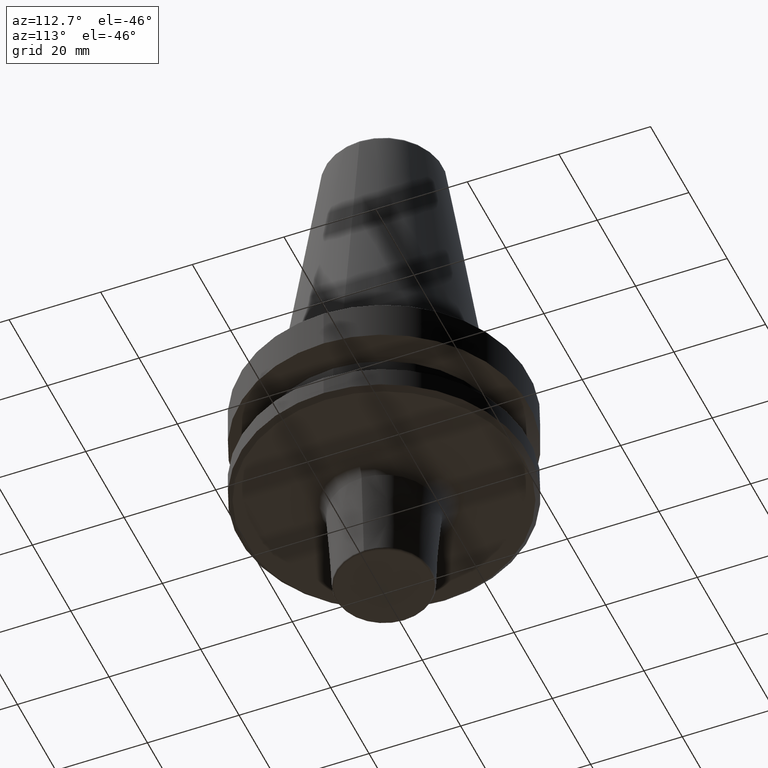
[diagram: clean part render]
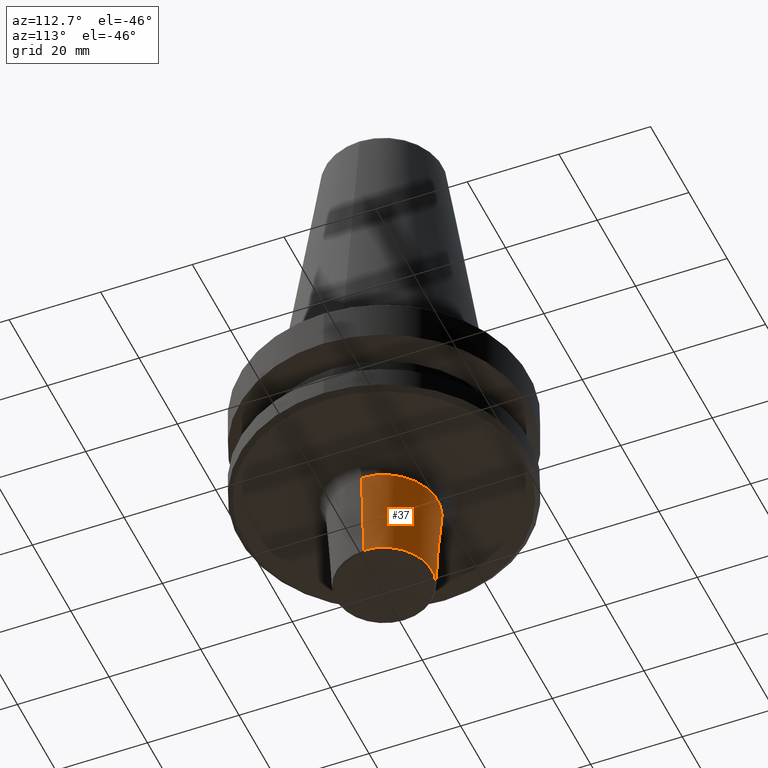
[diagram: same view with one face highlighted and labeled with its STEP entity id]
A machine part, auxiliary view. The second image highlights one B-rep face of the part: STEP entity #37.
In plain terms, the highlighted conical surface has half-angle 3.434 deg.
Its self-contained STEP definition (entity closure, byte-faithful):
#28 = DIRECTION ( 'NONE',  ( -0.05989229072794660700, 7.334690213358251100E-018, 0.9982048454657787000 ) ) ;
#37 = ADVANCED_FACE ( 'NONE', ( #916 ), #680, .T. ) ;
#63 = ORIENTED_EDGE ( 'NONE', *, *, #306, .F. ) ;
#83 = ORIENTED_EDGE ( 'NONE', *, *, #941, .F. ) ;
#111 = LINE ( 'NONE', #520, #958 ) ;
#114 = LINE ( 'NONE', #918, #311 ) ;
#187 = CARTESIAN_POINT ( 'NONE',  ( -10.52820323127814300, 1.289333038795759900E-015, -116.9299461453723300 ) ) ;
#213 = EDGE_CURVE ( 'NONE', #652, #216, #111, .T. ) ;
#216 = VERTEX_POINT ( 'NONE', #997 ) ;
#306 = EDGE_CURVE ( 'NONE', #457, #216, #435, .T. ) ;
#311 = VECTOR ( 'NONE', #993, 1000.000000000000000 ) ;
#368 = AXIS2_PLACEMENT_3D ( 'NONE', #823, #778, #548 ) ;
#387 = AXIS2_PLACEMENT_3D ( 'NONE', #781, #1046, #959 ) ;
#401 = DIRECTION ( 'NONE',  ( 1.000000000000000000, 0.0000000000000000000, 0.0000000000000000000 ) ) ;
#435 = CIRCLE ( 'NONE', #387, 11.71796768721838200 ) ;
#457 = VERTEX_POINT ( 'NONE', #1052 ) ;
#488 = ORIENTED_EDGE ( 'NONE', *, *, #213, .T. ) ;
#520 = CARTESIAN_POINT ( 'NONE',  ( -11.71796768721838200, 1.435037162066410600E-015, -97.10053854636829800 ) ) ;
#548 = DIRECTION ( 'NONE',  ( 1.000000000000000000, 0.0000000000000000000, 0.0000000000000000000 ) ) ;
#589 = EDGE_CURVE ( 'NONE', #979, #652, #991, .T. ) ;
#652 = VERTEX_POINT ( 'NONE', #187 ) ;
#680 = CONICAL_SURFACE ( 'NONE', #742, 11.71796768721838200, 0.05992815512120777000 ) ;
#742 = AXIS2_PLACEMENT_3D ( 'NONE', #906, #870, #401 ) ;
#778 = DIRECTION ( 'NONE',  ( -0.0000000000000000000, -0.0000000000000000000, 1.000000000000000000 ) ) ;
#781 = CARTESIAN_POINT ( 'NONE',  ( 0.0000000000000000000, 0.0000000000000000000, -97.10053854636829800 ) ) ;
#813 = CARTESIAN_POINT ( 'NONE',  ( 10.52820323127814300, 0.0000000000000000000, -116.9299461453723300 ) ) ;
#823 = CARTESIAN_POINT ( 'NONE',  ( 0.0000000000000000000, 0.0000000000000000000, -116.9299461453723300 ) ) ;
#870 = DIRECTION ( 'NONE',  ( -0.0000000000000000000, -0.0000000000000000000, 1.000000000000000000 ) ) ;
#906 = CARTESIAN_POINT ( 'NONE',  ( 0.0000000000000000000, 0.0000000000000000000, -97.10053854636829800 ) ) ;
#916 = FACE_OUTER_BOUND ( 'NONE', #1040, .T. ) ;
#918 = CARTESIAN_POINT ( 'NONE',  ( 11.71796768721838200, 0.0000000000000000000, -97.10053854636829800 ) ) ;
#941 = EDGE_CURVE ( 'NONE', #979, #457, #114, .T. ) ;
#958 = VECTOR ( 'NONE', #28, 1000.000000000000000 ) ;
#959 = DIRECTION ( 'NONE',  ( 1.000000000000000000, 0.0000000000000000000, 0.0000000000000000000 ) ) ;
#979 = VERTEX_POINT ( 'NONE', #813 ) ;
#991 = CIRCLE ( 'NONE', #368, 10.52820323127814300 ) ;
#993 = DIRECTION ( 'NONE',  ( 0.05989229072794660700, 0.0000000000000000000, 0.9982048454657787000 ) ) ;
#997 = CARTESIAN_POINT ( 'NONE',  ( -11.71796768721838000, 1.740649254289671100E-015, -97.10053854636829800 ) ) ;
#1036 = ORIENTED_EDGE ( 'NONE', *, *, #589, .T. ) ;
#1040 = EDGE_LOOP ( 'NONE', ( #1036, #488, #63, #83 ) ) ;
#1046 = DIRECTION ( 'NONE',  ( -0.0000000000000000000, -0.0000000000000000000, 1.000000000000000000 ) ) ;
#1052 = CARTESIAN_POINT ( 'NONE',  ( 11.71796768721838200, 0.0000000000000000000, -97.10053854636829800 ) ) ;